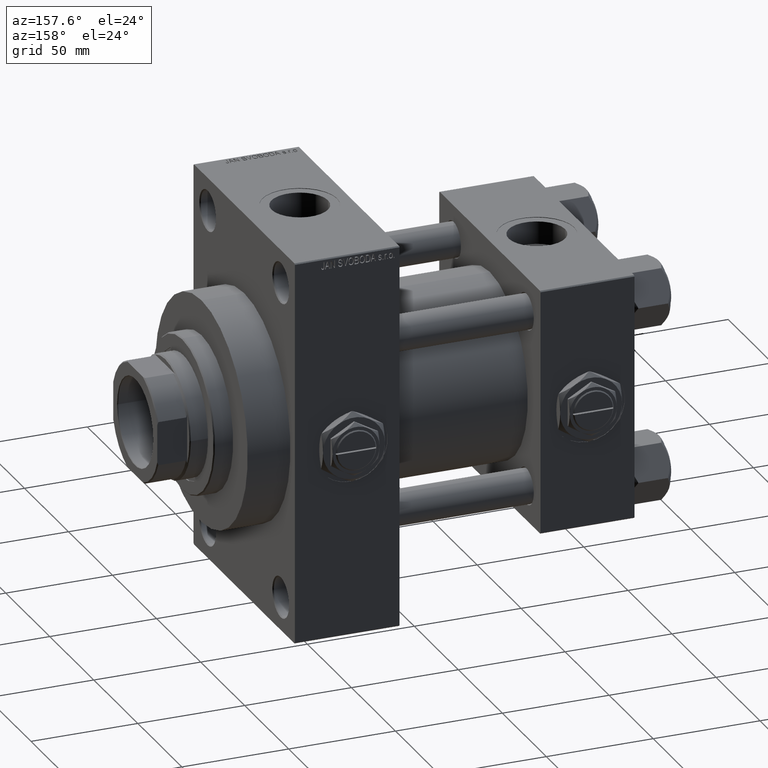
[diagram: clean part render]
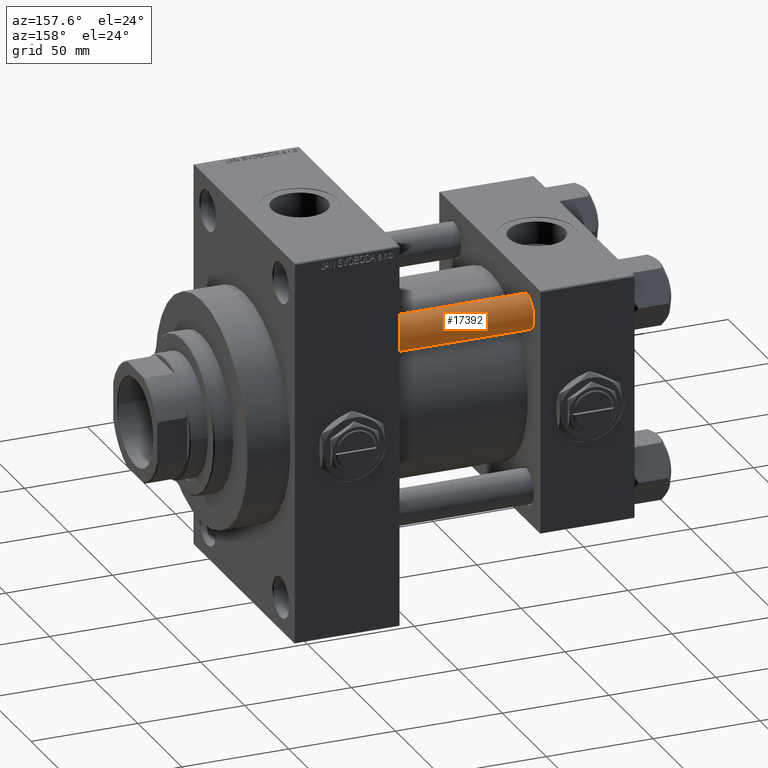
[diagram: same view with one face highlighted and labeled with its STEP entity id]
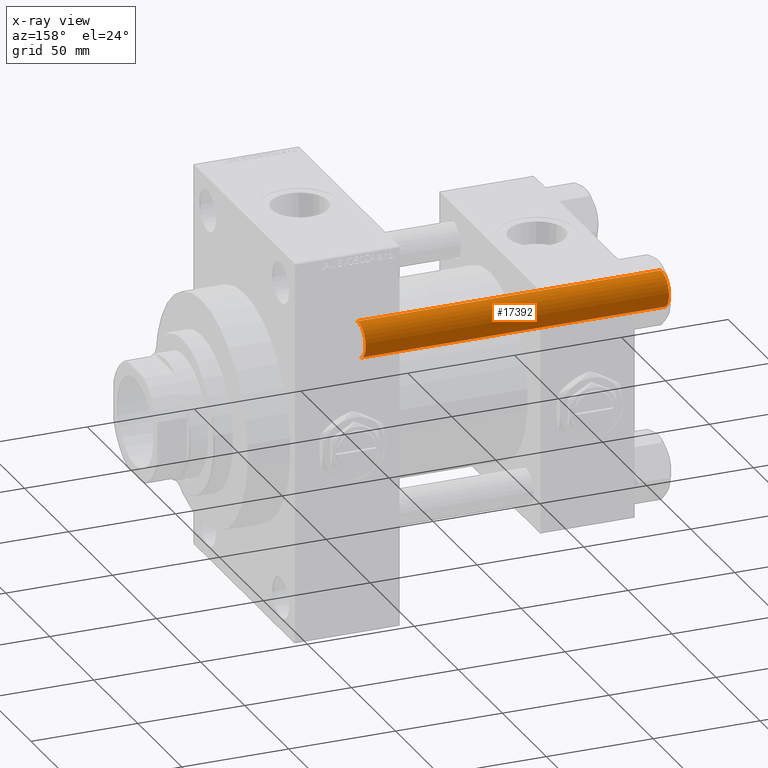
[diagram: x-ray of the same camera — body ghosted, the highlighted face saturated]
A machine part, auxiliary view. The second image highlights one B-rep face of the part: STEP entity #17392.
The next image is the same camera in x-ray: the body ghosted, the highlighted face saturated — about 0% of this face is hidden behind the body in this view.
In plain terms, the highlighted cylindrical surface (edge-blend (fillet) strip) has radius 8 mm, axis along (-1, -0, 0).
Its self-contained STEP definition (entity closure, byte-faithful):
#357 = VERTEX_POINT ( 'NONE', #37958 ) ;
#1888 = CIRCLE ( 'NONE', #23605, 8.000000000000000000 ) ;
#2449 = CARTESIAN_POINT ( 'NONE',  ( -8.000000000000000000, 0.000000000000000000, 0.4999999999999726885 ) ) ;
#4756 = DIRECTION ( 'NONE',  ( 0.000000000000000000, 0.000000000000000000, -1.000000000000000000 ) ) ;
#7425 = ORIENTED_EDGE ( 'NONE', *, *, #23749, .T. ) ;
#9043 = CARTESIAN_POINT ( 'NONE',  ( 0.000000000000000000, 0.000000000000000000, 143.0000000000000000 ) ) ;
#11288 = VERTEX_POINT ( 'NONE', #13131 ) ;
#13131 = CARTESIAN_POINT ( 'NONE',  ( -8.000000000000000000, 0.000000000000000000, 142.4999999999999716 ) ) ;
#17040 = LINE ( 'NONE', #43224, #21451 ) ;
#17392 = ADVANCED_FACE ( 'NONE', ( #25424 ), #40028, .T. ) ;
#17888 = VERTEX_POINT ( 'NONE', #2449 ) ;
#20299 = VERTEX_POINT ( 'NONE', #45281 ) ;
#20902 = DIRECTION ( 'NONE',  ( -0.000000000000000000, -0.000000000000000000, -1.000000000000000000 ) ) ;
#21451 = VECTOR ( 'NONE', #32144, 1000.000000000000000 ) ;
#21732 = VECTOR ( 'NONE', #28935, 1000.000000000000000 ) ;
#23367 = AXIS2_PLACEMENT_3D ( 'NONE', #9043, #20902, #24422 ) ;
#23605 = AXIS2_PLACEMENT_3D ( 'NONE', #39506, #4756, #24157 ) ;
#23749 = EDGE_CURVE ( 'NONE', #11288, #20299, #1888, .T. ) ;
#24157 = DIRECTION ( 'NONE',  ( 1.000000000000000000, 0.000000000000000000, 0.000000000000000000 ) ) ;
#24229 = EDGE_CURVE ( 'NONE', #357, #17888, #46145, .T. ) ;
#24422 = DIRECTION ( 'NONE',  ( -1.000000000000000000, 0.000000000000000000, 0.000000000000000000 ) ) ;
#25016 = DIRECTION ( 'NONE',  ( -0.000000000000000000, -0.000000000000000000, 1.000000000000000000 ) ) ;
#25156 = LINE ( 'NONE', #38164, #21732 ) ;
#25424 = FACE_OUTER_BOUND ( 'NONE', #34619, .T. ) ;
#28935 = DIRECTION ( 'NONE',  ( -0.000000000000000000, -0.000000000000000000, -1.000000000000000000 ) ) ;
#31637 = AXIS2_PLACEMENT_3D ( 'NONE', #43394, #25016, #40374 ) ;
#32144 = DIRECTION ( 'NONE',  ( -0.000000000000000000, -0.000000000000000000, -1.000000000000000000 ) ) ;
#32369 = ORIENTED_EDGE ( 'NONE', *, *, #45487, .T. ) ;
#34596 = EDGE_CURVE ( 'NONE', #11288, #17888, #17040, .T. ) ;
#34619 = EDGE_LOOP ( 'NONE', ( #7425, #32369, #46779, #44551 ) ) ;
#37958 = CARTESIAN_POINT ( 'NONE',  ( 8.000000000000000000, 9.797174393178825657E-16, 0.4999999999999726885 ) ) ;
#38164 = CARTESIAN_POINT ( 'NONE',  ( 8.000000000000000000, 9.797174393178825657E-16, 143.0000000000000000 ) ) ;
#39506 = CARTESIAN_POINT ( 'NONE',  ( 0.000000000000000000, 0.000000000000000000, 142.4999999999999716 ) ) ;
#40028 = CYLINDRICAL_SURFACE ( 'NONE', #23367, 8.000000000000000000 ) ;
#40374 = DIRECTION ( 'NONE',  ( 1.000000000000000000, 0.000000000000000000, 0.000000000000000000 ) ) ;
#43224 = CARTESIAN_POINT ( 'NONE',  ( -8.000000000000000000, 0.000000000000000000, 143.0000000000000000 ) ) ;
#43394 = CARTESIAN_POINT ( 'NONE',  ( 0.000000000000000000, 0.000000000000000000, 0.4999999999999726885 ) ) ;
#44551 = ORIENTED_EDGE ( 'NONE', *, *, #34596, .F. ) ;
#45281 = CARTESIAN_POINT ( 'NONE',  ( 8.000000000000000000, 9.797174393178825657E-16, 142.4999999999999716 ) ) ;
#45487 = EDGE_CURVE ( 'NONE', #20299, #357, #25156, .T. ) ;
#46145 = CIRCLE ( 'NONE', #31637, 8.000000000000000000 ) ;
#46779 = ORIENTED_EDGE ( 'NONE', *, *, #24229, .T. ) ;